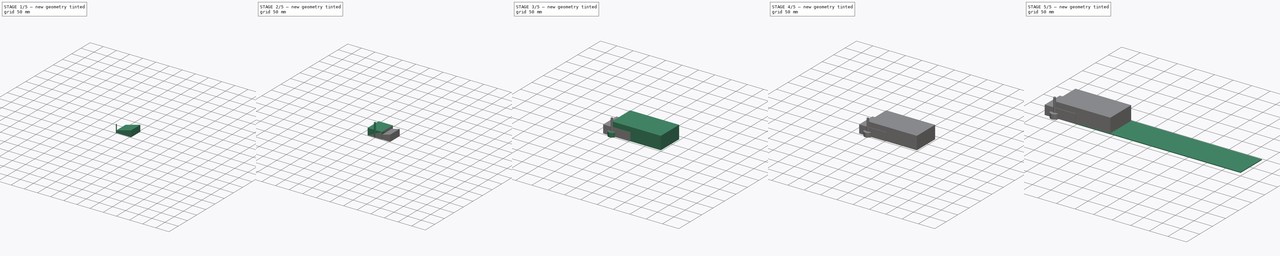
[diagram: build sequence overview — one tinted view per stage of 5, left to right]
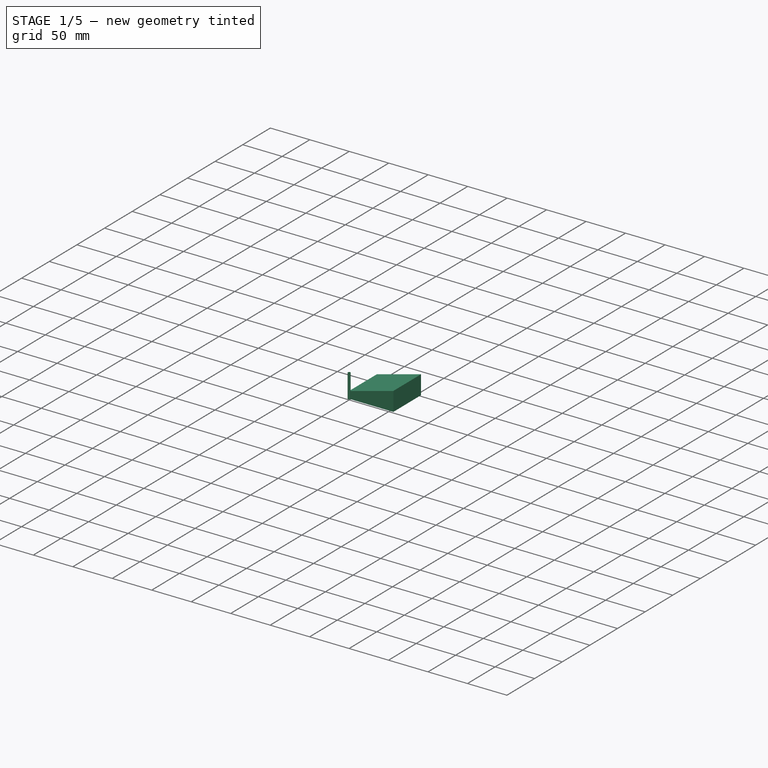
[diagram: stage 1 of 5 — iso view after this stage's code; geometry added in this stage tinted green]
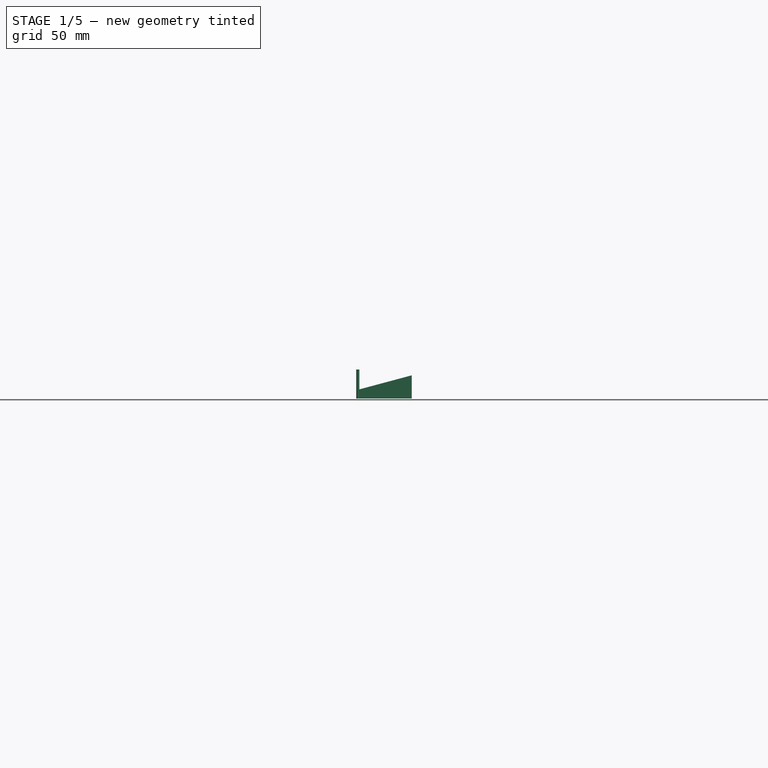
[diagram: stage 1 of 5 — front view after this stage's code; geometry added in this stage tinted green]
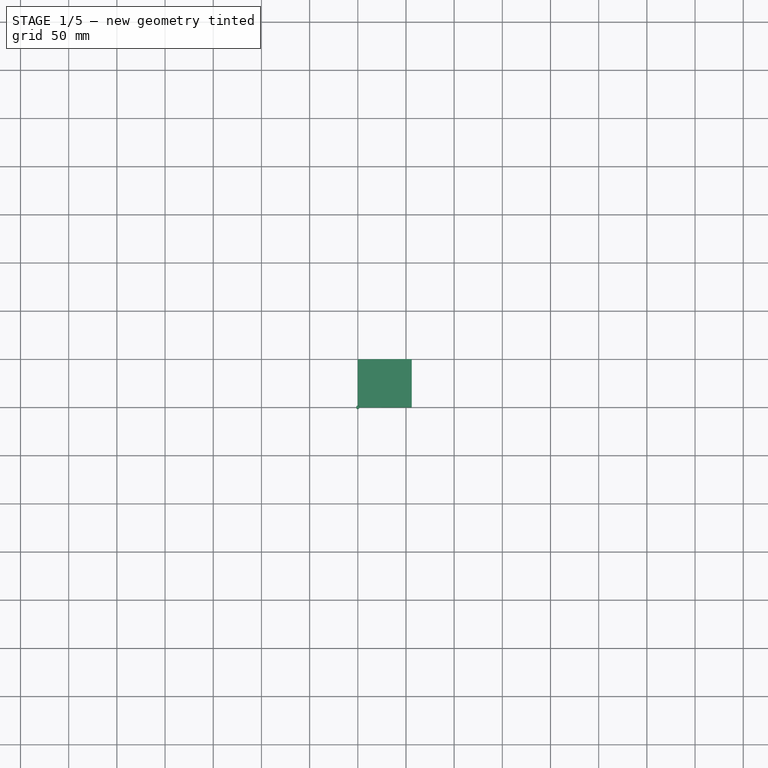
[diagram: stage 1 of 5 — top view after this stage's code; geometry added in this stage tinted green]
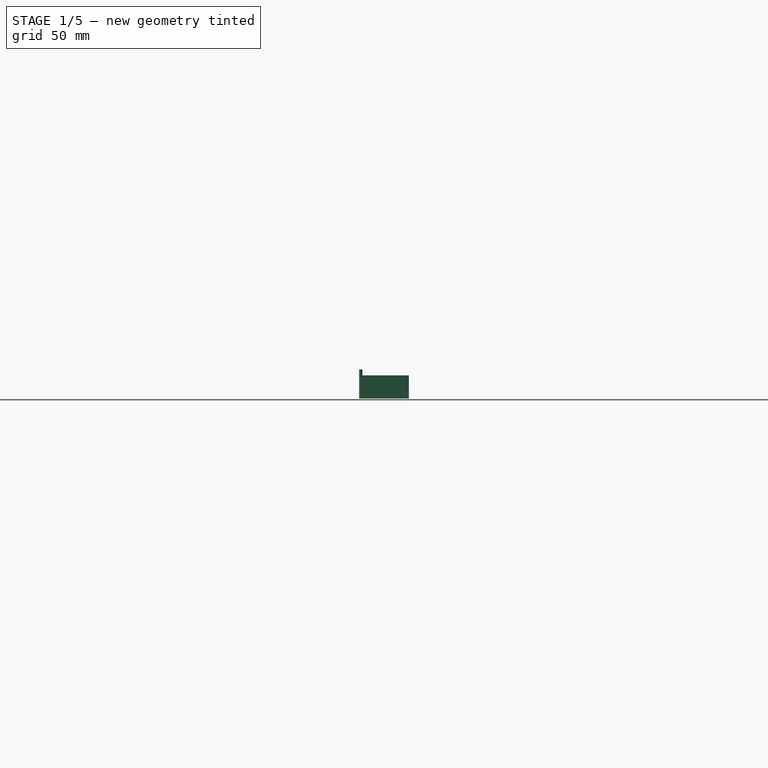
[diagram: stage 1 of 5 — right view after this stage's code; geometry added in this stage tinted green]
FCSTD DOCUMENT  (FreeCAD 0.21R31527 (Git))
Label: bend_conductor
License: All rights reserved
LicenseURL: http://en.wikipedia.org/wiki/All_rights_reserved
objects: Path::FeaturePython×18, Part::FeaturePython×12, App::DocumentObjectGroup×12, App::FeaturePython×4, PartDesign::Body×3, PartDesign::AdditiveBox×2, Sketcher::SketchObject×1, PartDesign::Pad×1
note: 26 computed .brp shape members not serialized (recipe doc carries the construction recipe); baked Part::Feature solids carry a one-line shape summary decoded from their .brp

FEATURE [Path::FeaturePython] MillFace001  # Path/CAM operation (typed FeaturePython)
  Active = true
  AreaParams:
    Tolerance = 1e-07
    FitArcs = True
    Simplify = False
    CleanDistance = 0.0
    Accuracy = 0.01
    Unit = 1.0
    MinArcPoints = 4
    MaxArcPoints = 100
    ClipperScale = 10000000.0
    Fill = 0
    Coplanar = 0
    Reorient = True
    Outline = False
    Explode = False
    OpenMode = 0
    Deflection = 0.01
    SubjectFill = 0
    ClipFill = 0
    Offset = 0.0
    ExtraPass = 0
    Stepover = 0.0
    LastStepover = 0.0
    JoinType = 0
    EndType = 0
    MiterLimit = 2.0
    RoundPrecision = 0.0
    PocketMode = 2
    ToolRadius = 11.0
    PocketExtraOffset = 0.0
    PocketStepover = 11.0
    PocketLastStepover = 0.0
    FromCenter = True
    Angle = 45.0
    AngleShift = 0.0
    Shift = 0.0
    Thicken = False
    SectionCount = -1
    Stepdown = 1.0
    SectionOffset = 0.0
    SectionTolerance = 1e-07
    SectionMode = 2
    Project = False
  BoundaryShape = 3
  ClearEdges = false
  ClearanceHeight = 45
  CoolantMode = 0
  CutMode = 0
  CycleTime = 00:00:48
  ExcludeRaisedAreas = false
  ExtraOffset = 0
  FinalDepth = 24
  FinishDepth = 0
  KeepToolDown = true
  MinTravel = false
  OffsetPattern = 1
  OpFinalDepth = 24
  OpStartDepth = 40
  OpStockZMax = 40
  OpStockZMin = 0
  OpToolDiameter = 22
  PathParams:
    orientation = 1
    feedrate = 51.666666666666664
    feedrate_v = 16.666666666666668
    verbose = True
    resume_height = 43.0
    retraction = 45.0
    return_end = True
    preamble = False
    threshold = 22.011
  PocketLastStepOver = 0
  SafeHeight = 43
  SplitArcs = false
  StartAt = 0
  StartDepth = 40
  StartPoint = (0,0,0)
  StepDown = 10
  StepOver = 50
  ToolController = -> _2mm_Endmill007
  UseStartPoint = false
  ZigZagAngle = 45
  expr: ClearanceHeight = OpStockZMax + SetupSheet001.ClearanceHeightOffset
  expr: FinalDepth = OpFinalDepth
  expr: SafeHeight = OpStockZMax + SetupSheet001.SafeHeightOffset
  expr: StartDepth = OpStartDepth
FEATURE [Path::FeaturePython] RampEntryDressup001  # Path/CAM operation (typed FeaturePython)
  Angle = 60
  Base = -> MillFace001
  CustomFeedRate = 0
  DressupStartDepth = 40
  Method = 2
  RampFeedRate = 0
  UseStartDepth = false
FEATURE [Path::FeaturePython] DressupDogbone  # Path/CAM operation (typed FeaturePython)
  Base = -> RampEntryDressup001
  Custom = 0
  Incision = 0
  Side = 1
  Style = 2
FEATURE [App::DocumentObjectGroup] Operations001
  Group = -> [DressupDogbone]
FEATURE [Path::FeaturePython] Job001  # Path/CAM operation (typed FeaturePython)
  CycleTime = 00:00:48
  Fixtures = G54
  GeometryTolerance = 0.01
  JobType = 0
  LastPostProcessDate = 2023-01-15 18:26:54.475540
  LastPostProcessOutput = <userpath>/2411-26D9/Unnamed3.Job001.tap
  Model = -> Model001
  Operations = -> Operations001
  OrderOutputBy = 0
  PostProcessor = 1
  PostProcessorOutputFile = %d.%j.tap
  SetupSheet = -> SetupSheet001
  SplitOutput = false
  Stock = -> Stock002
  Tools = -> Tools001
FEATURE [Sketcher::SketchObject] Sketch
  FullyConstrained = true
  MapMode = 5
  Placement = pos=(0,0,0) rot=(0.57735,0.57735,0.57735;2.0944rad)
  Support = -> [YZ_Plane002]
  sketch-geometry (4):
    g0: LineSegment StartX=0 StartY=0 StartZ=0 EndX=55.9808 EndY=0 EndZ=0
    g1: LineSegment StartX=55.9808 StartY=0 StartZ=0 EndX=55.9808 EndY=24 EndZ=0
    g2: LineSegment StartX=55.9808 StartY=24 StartZ=0 EndX=0 EndY=9 EndZ=0
    g3: LineSegment StartX=0 StartY=9 StartZ=0 EndX=0 EndY=0 EndZ=0
  constraints (11):
    c: Coincident(g0,g1)
    c: Coincident(g1,g2)
    c: Coincident(g2,g3)
    c: Coincident(g3,g0)
    c: Horizontal(g0)
    c: Vertical(g1)
    c: Vertical(g3)
    c: Coincident(g0,g-1)
    c: DistanceY(g2) = 9
    c: DistanceY(g1) = 24
    c: Angle(g-1,g2) = 0.261799
FEATURE [PartDesign::Pad] Pad
  Direction = (1,-2e-16,3e-16)
  Length = 50
  Length2 = 10
  Midplane = true
  Placement = pos=(0,0,0) rot=(0.57735,0.57735,0.57735;2.0944rad)
  Profile = -> Sketch
  ReferenceAxis = -> Sketch [N_Axis]
  Type = 0
FEATURE [PartDesign::Body] Body002
  Group = -> [Sketch,Pad]
  Origin = -> Origin002
  Tip = -> Pad
FEATURE [App::FeaturePython] SetupSheet002  # Path/CAM operation (typed FeaturePython)
  ClearanceHeightExpression = OpStockZMax+SetupSheet002.ClearanceHeightOffset
  ClearanceHeightOffset = 5
  CoolantMode = 0
  CoolantModes = None | Flood | Mist
  FinalDepthExpression = OpFinalDepth
  HorizRapid = 0
  ProfileDirection = 1
  ProfileprocessCircles = true
  ProfileprocessHoles = true
  ProfileprocessPerimeter = true
  SafeHeightExpression = OpStockZMax+SetupSheet002.SafeHeightOffset
  SafeHeightOffset = 3
  StartDepthExpression = OpStartDepth
  StepDownExpression = OpToolDiameter
  VertRapid = 0
FEATURE [Part::FeaturePython] Clone002  label="Model-Body002"  # Draft clone (typed FeaturePython)
  AttacherType = Attacher::AttachEngine3D
  Fuse = false
  Objects = -> [Body002]
  PathResource = Model
  Placement = pos=(7e-15,25,-1e-14) rot=(0,0,-1;1.5708rad)
  Scale = (1,1,1)
FEATURE [App::DocumentObjectGroup] Model002
  Group = -> [Clone002]
FEATURE [Part::FeaturePython] ToolBit  label="3.175mm Endmill"  # Path/CAM toolbit (typed FeaturePython)
  BitPropertyNames = Chipload | CuttingEdgeHeight | Diameter | Flutes | Length | Material | ShankDiameter | SpindleDirection
  BitShape = <path>
  Chipload = 0
  CuttingEdgeHeight = 30
  Diameter = 3.17
  Flutes = 0
  Length = 10
  Material = 0
  ShankDiameter = 3
  ShapeName = endmill
  SpindleDirection = 0
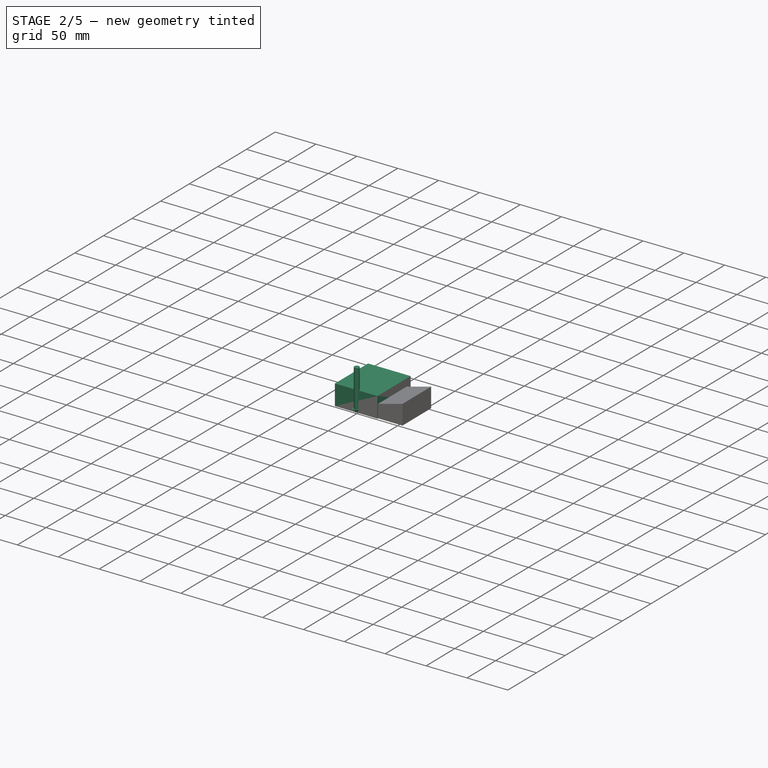
[diagram: stage 2 of 5 — iso view after this stage's code; geometry added in this stage tinted green]
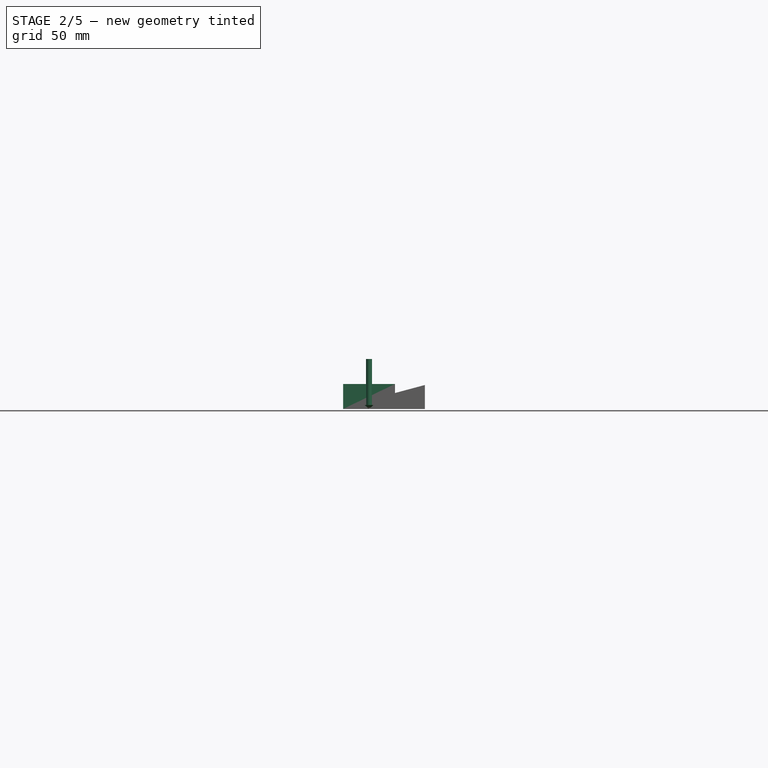
[diagram: stage 2 of 5 — front view after this stage's code; geometry added in this stage tinted green]
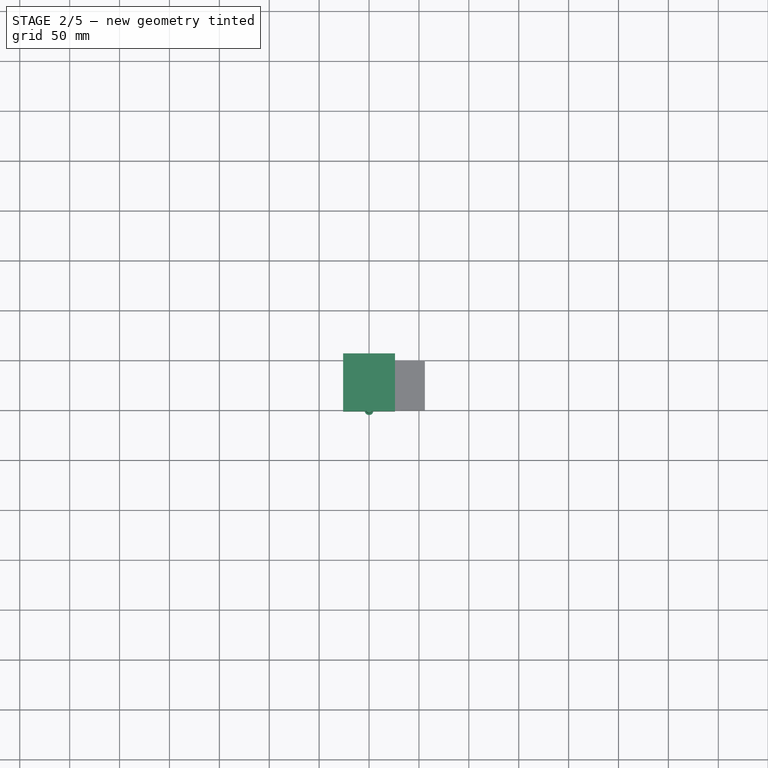
[diagram: stage 2 of 5 — top view after this stage's code; geometry added in this stage tinted green]
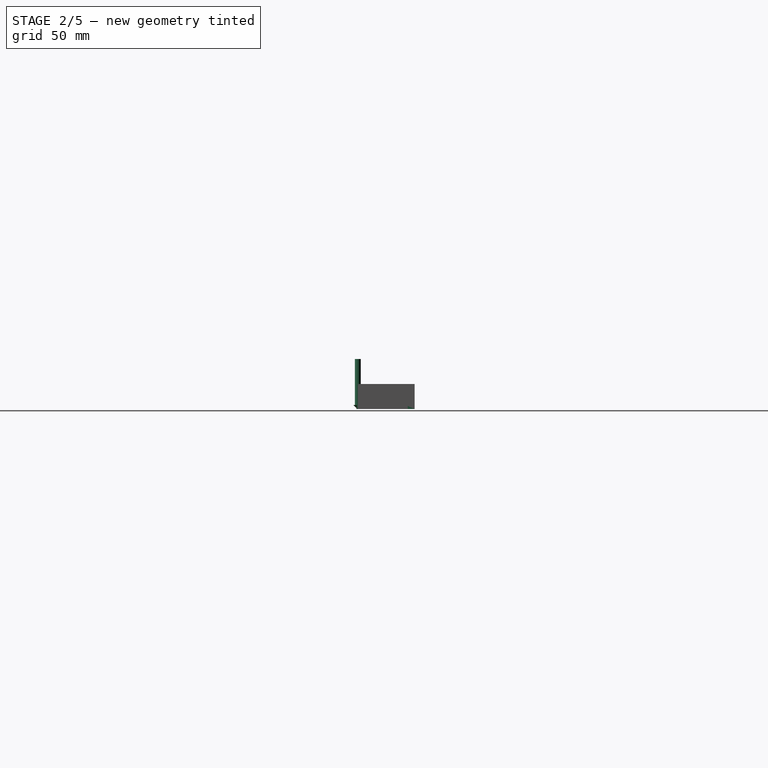
[diagram: stage 2 of 5 — right view after this stage's code; geometry added in this stage tinted green]
FEATURE [Path::FeaturePython] Pocket3D  # Path/CAM operation (typed FeaturePython)
  Active = true
  AdaptivePocketFinish = true
  AdaptivePocketStart = true
  AreaParams:
    Tolerance = 1e-07
    FitArcs = True
    Simplify = False
    CleanDistance = 0.0
    Accuracy = 0.01
    Unit = 1.0
    MinArcPoints = 4
    MaxArcPoints = 100
    ClipperScale = 10000000.0
    Fill = 0
    Coplanar = 0
    Reorient = True
    Outline = False
    Explode = False
    OpenMode = 0
    Deflection = 0.01
    SubjectFill = 0
    ClipFill = 0
    Offset = 0.0
    ExtraPass = 0
    Stepover = 0.0
    LastStepover = 0.0
    JoinType = 0
    EndType = 0
    MiterLimit = 2.0
    RoundPrecision = 0.0
    PocketMode = 2
    ToolRadius = 1.585
    PocketExtraOffset = 0.0
    PocketStepover = 1.585
    PocketLastStepover = 0.0
    FromCenter = True
    Angle = 45.0
    AngleShift = 0.0
    Shift = 0.0
    Thicken = False
    SectionCount = -1
    Stepdown = 1.0
    SectionOffset = 0.0
    SectionTolerance = 1e-07
    SectionMode = 2
    Project = False
  ClearanceHeight = 30
  CoolantMode = 0
  CutMode = 0
  CycleTime = 00:01:18
  ExtraOffset = 0
  FinalDepth = -6.04e-14
  FinishDepth = 0
  HandleMultipleFeatures = 0
  KeepToolDown = true
  MinTravel = false
  OffsetPattern = 1
  OpFinalDepth = -6.04e-14
  OpStartDepth = 25
  OpStockZMax = 25
  OpStockZMin = 0
  OpToolDiameter = 3.17
  PathParams:
    orientation = 1
    feedrate = 51.666666666666664
    feedrate_v = 16.666666666666668
    verbose = True
    resume_height = 28.000000000000036
    retraction = 30.000000000000036
    return_end = True
    preamble = False
    threshold = 3.171585
  PocketLastStepOver = 0
  ProcessStockArea = false
  SafeHeight = 28
  SplitArcs = false
  StartAt = 0
  StartDepth = 25
  StartPoint = (0,0,0)
  StepDown = 3.17
  StepOver = 50
  ToolController = -> __175mm_Endmill
  UseStartPoint = false
  ZigZagAngle = 45
  expr: ClearanceHeight = OpStockZMax + SetupSheet002.ClearanceHeightOffset
  expr: FinalDepth = OpFinalDepth
  expr: OpFinalDepth = -6.039613253960852e-14mm
  expr: SafeHeight = OpStockZMax + SetupSheet002.SafeHeightOffset
  expr: StartDepth = OpStartDepth
  expr: StepDown = OpToolDiameter
FEATURE [Path::FeaturePython] Profile  # Path/CAM operation (typed FeaturePython)
  Active = true
  AreaParams:
    Tolerance = 1e-07
    FitArcs = True
    Simplify = False
    CleanDistance = 0.0
    Accuracy = 0.01
    Unit = 1.0
    MinArcPoints = 4
    MaxArcPoints = 100
    ClipperScale = 10000000.0
    Fill = 0
    Coplanar = 0
    Reorient = True
    Outline = False
    Explode = False
    OpenMode = 0
    Deflection = 0.01
    SubjectFill = 0
    ClipFill = 0
    Offset = 1.585
    ExtraPass = 0
    Stepover = 0.0
    LastStepover = 0.0
    JoinType = 0
    EndType = 0
    MiterLimit = 2.0
    RoundPrecision = 0.0
    PocketMode = 0
    ToolRadius = 1.0
    PocketExtraOffset = 0.0
    PocketStepover = 0.0
    PocketLastStepover = 0.0
    FromCenter = False
    Angle = 45.0
    AngleShift = 0.0
    Shift = 0.0
    Thicken = False
    SectionCount = -1
    Stepdown = 1.0
    SectionOffset = 0.0
    SectionTolerance = 1e-07
    SectionMode = 2
    Project = False
  ClearanceHeight = 30
  CoolantMode = 0
  CycleTime = 00:00:40
  Direction = 1
  FinalDepth = -6.3e-14
  HandleMultipleFeatures = 0
  JoinType = 0
  MiterLimit = 0.1
  OffsetExtra = 0
  OpFinalDepth = -6.3e-14
  OpStartDepth = 25
  OpStockZMax = 25
  OpStockZMin = -6.3e-14
  OpToolDiameter = 3.17
  PathParams:
    orientation = 0
    feedrate = 51.666666666666664
    feedrate_v = 16.666666666666668
    verbose = True
    resume_height = 27.99999999999997
    retraction = 29.99999999999997
    return_end = True
    preamble = False
  SafeHeight = 28
  Side = 0
  SplitArcs = false
  StartDepth = 25
  StartPoint = (0,0,0)
  StepDown = 3.17
  ToolController = -> __175mm_Endmill
  UseComp = true
  UseStartPoint = false
  processCircles = true
  processHoles = true
  processPerimeter = true
  expr: ClearanceHeight = OpStockZMax + SetupSheet002.ClearanceHeightOffset
  expr: FinalDepth = OpFinalDepth
  expr: SafeHeight = OpStockZMax + SetupSheet002.SafeHeightOffset
  expr: StartDepth = OpStartDepth
  expr: StepDown = OpToolDiameter
FEATURE [Path::FeaturePython] DressupDogbone001  # Path/CAM operation (typed FeaturePython)
  Base = -> Pocket3D
  Custom = 0
  Incision = 0
  Side = 1
  Style = 2
FEATURE [App::FeaturePython] SetupSheet003  # Path/CAM operation (typed FeaturePython)
  ClearanceHeightExpression = OpStockZMax+SetupSheet003.ClearanceHeightOffset
  ClearanceHeightOffset = 5
  CoolantMode = 0
  CoolantModes = None | Flood | Mist
  FinalDepthExpression = OpFinalDepth
  HorizRapid = 0
  ProfileDirection = 1
  ProfileprocessCircles = true
  ProfileprocessHoles = true
  ProfileprocessPerimeter = true
  SafeHeightExpression = OpStockZMax+SetupSheet003.SafeHeightOffset
  SafeHeightOffset = 3
  StartDepthExpression = OpStartDepth
  StepDownExpression = OpToolDiameter
  VertRapid = 0
FEATURE [Part::FeaturePython] Clone003  label="Model-Body003"  # Draft clone (typed FeaturePython)
  AttacherType = Attacher::AttachEngine3D
  Fuse = false
  Objects = -> [Body002]
  PathResource = Model
  Scale = (1,1,1)
FEATURE [App::DocumentObjectGroup] Model003
  Group = -> [Clone003]
FEATURE [Part::FeaturePython] Stock004  # WARN: FeaturePython — macro-defined, semantics opaque (R4)
  Base = -> Model003
  ExtXneg = 1
  ExtXpos = 1
  ExtYneg = 1
  ExtYpos = 1
  ExtZneg = 0
  ExtZpos = 1
  Placement = pos=(-25,-1.1e-14,-5.3e-14) rot=(0,0,1;0rad)
  StockType = FromBase
FEATURE [Part::FeaturePython] ToolBit004  label="NZV6109015"  # Path/CAM toolbit (typed FeaturePython)
  BitPropertyNames = Chipload | CuttingEdgeAngle | CuttingEdgeHeight | Diameter | Flutes | Length | Material | ShankDiameter | TipDiameter
  BitShape = <path>
  Chipload = 0
  CuttingEdgeAngle = 90
  CuttingEdgeHeight = 4
  Diameter = 10
  File = <userpath>/.local/share/FreeCAD/Macro/Bit/NZV6109010.fctb
  Flutes = 0
  Length = 50
  Material = 0
  ShankDiameter = 6
  ShapeName = chamfer
  TipDiameter = 1
FEATURE [Path::FeaturePython] NZV6109015  label="NZV6109016"  # Path/CAM operation (typed FeaturePython)
  HorizFeed = 51.6667
  HorizRapid = 0
  SpindleDir = 0
  SpindleSpeed = 18000
  Tool = -> ToolBit004
  ToolNumber = 2
  VertFeed = 16.6667
  VertRapid = 0
  expr: HorizRapid = SetupSheet003.HorizRapid
  expr: VertRapid = SetupSheet003.VertRapid
FEATURE [App::DocumentObjectGroup] Tools003
  Group = -> [NZV6109015]
FEATURE [Path::FeaturePython] Surface  # Path/CAM operation (typed FeaturePython)
  Active = true
  AngularDeflection = 0.25
  AvoidLastX_Faces = 0
  AvoidLastX_InternalFeatures = true
  Base = -> [Clone003]
  BoundBox = 0
  BoundaryAdjustment = 0
  BoundaryEnforcement = true
  CircularUseG2G3 = false
  ClearanceHeight = 30
  CoolantMode = 0
  CutMode = 0
  CutPattern = 2
  CutPatternAngle = 0
  CutPatternReversed = false
  CutterTilt = 0
  CycleTime = 00:00:01
  DepthOffset = 0
  DropCutterDir = 0
  DropCutterExtraOffset = (0,0,0)
  FinalDepth = 9
  GapSizes = No gaps identified.
  GapThreshold = 0.005
  HandleMultipleFeatures = 0
  InternalFeaturesAdjustment = 0
  InternalFeaturesCut = true
  LayerMode = 0
  LinearDeflection = 0.0025
  OpFinalDepth = 9
  OpStartDepth = 25
  OpStockZMax = 25
  OpStockZMin = -5.3e-14
  OpToolDiameter = 10
  OptimizeLinearPaths = true
  OptimizeStepOverTransitions = false
  PatternCenterAt = 0
  PatternCenterCustom = (0,0,0)
  ProfileEdges = 0
  RotationAxis = 0
  SafeHeight = 28
  SampleInterval = 1
  ScanType = 0
  ShowTempObjects = false
  StartDepth = 25
  StartIndex = 0
  StartPoint = (0,0,0)
  StepDown = 10
  StepOver = 100
  StopIndex = 360
  ToolController = -> NZV6109015
  UseStartPoint = false
  expr: ClearanceHeight = OpStockZMax + SetupSheet003.ClearanceHeightOffset
  expr: FinalDepth = OpFinalDepth
  expr: SafeHeight = OpStockZMax + SetupSheet003.SafeHeightOffset
  expr: StartDepth = OpStartDepth
  expr: StepDown = OpToolDiameter
FEATURE [App::DocumentObjectGroup] Operations003
  Group = -> [Surface]
FEATURE [Path::FeaturePython] Job003  # Path/CAM operation (typed FeaturePython)
  CycleTime = 00:00:01
  Fixtures = G54
  GeometryTolerance = 0.01
  JobType = 0
  Model = -> Model003
  Operations = -> Operations003
  OrderOutputBy = 0
  PostProcessor = 1
  PostProcessorOutputFile = %d.%j.tap
  SetupSheet = -> SetupSheet003
  SplitOutput = false
  Stock = -> Stock004
  Tools = -> Tools003
FEATURE [Path::FeaturePython] Surface001  # Path/CAM operation (typed FeaturePython)
  Active = true
  AngularDeflection = 0.25
  AvoidLastX_Faces = 0
  AvoidLastX_InternalFeatures = true
  Base = -> [Clone002]
  BoundBox = 0
  BoundaryAdjustment = 0
  BoundaryEnforcement = true
  CircularUseG2G3 = false
  ClearanceHeight = 30
  CoolantMode = 0
  CutMode = 0
  CutPattern = 2
  CutPatternAngle = 0
  CutPatternReversed = false
  CutterTilt = 0
  CycleTime = 00:01:25
  DepthOffset = 0
  DropCutterDir = 0
  DropCutterExtraOffset = (0,0,0)
  FinalDepth = 9
  GapSizes = No gaps identified.
  GapThreshold = 0.005
  HandleMultipleFeatures = 0
  InternalFeaturesAdjustment = 0
  InternalFeaturesCut = true
  LayerMode = 0
  LinearDeflection = 0.0025
  OpFinalDepth = 9
  OpStartDepth = 25
  OpStockZMax = 25
  OpStockZMin = 0
  OpToolDiameter = 3.17
  OptimizeLinearPaths = true
  OptimizeStepOverTransitions = false
  PatternCenterAt = 0
  PatternCenterCustom = (0,0,0)
  ProfileEdges = 0
  RotationAxis = 0
  SafeHeight = 28
  SampleInterval = 1
  ScanType = 0
  ShowTempObjects = false
  StartDepth = 25
  StartIndex = 0
  StartPoint = (0,0,0)
  StepDown = 3.17
  StepOver = 100
  StopIndex = 360
  ToolController = -> __175mm_Endmill
  UseStartPoint = false
  expr: ClearanceHeight = OpStockZMax + SetupSheet002.ClearanceHeightOffset
  expr: FinalDepth = OpFinalDepth
  expr: SafeHeight = OpStockZMax + SetupSheet002.SafeHeightOffset
  expr: StartDepth = OpStartDepth
  expr: StepDown = OpToolDiameter
FEATURE [App::DocumentObjectGroup] Operations002
  Group = -> [DressupDogbone001,Profile,Surface001]
FEATURE [Path::FeaturePython] Job002  # Path/CAM operation (typed FeaturePython)
  CycleTime = 00:03:23
  Fixtures = G54
  GeometryTolerance = 0.01
  JobType = 0
  LastPostProcessDate = 2023-01-15 19:02:20.319499
  LastPostProcessOutput = <userpath>/2411-26D9/bend_conductor.Job002.tap
  Model = -> Model002
  Operations = -> Operations002
  OrderOutputBy = 0
  PostProcessor = 1
  PostProcessorOutputFile = %d.%j.tap
  SetupSheet = -> SetupSheet002
  SplitOutput = false
  Stock = -> Stock003
  Tools = -> Tools002
note: 4 file-system paths scrubbed to <path> (originals preserved in the JSON sidecar)
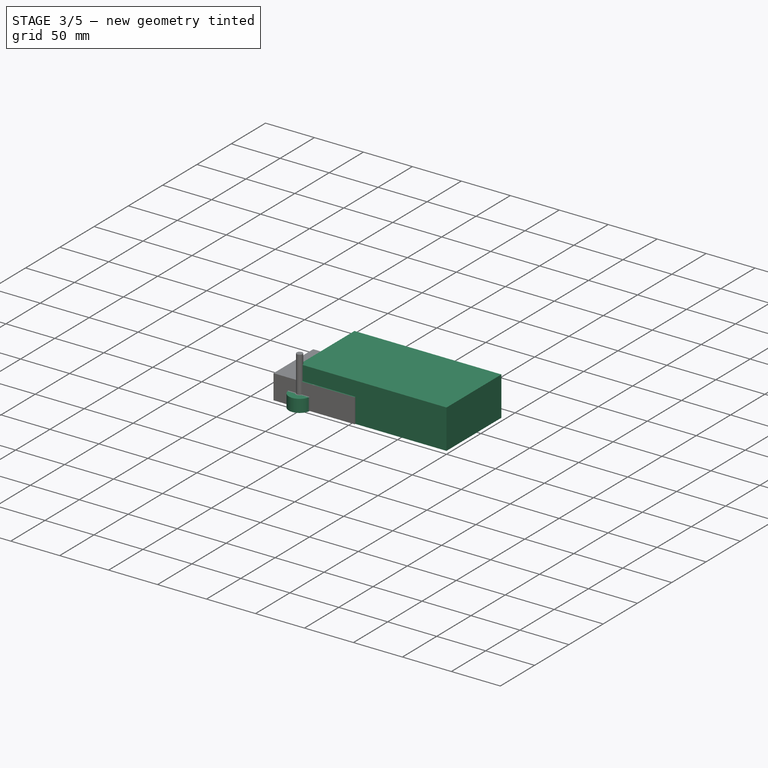
[diagram: stage 3 of 5 — iso view after this stage's code; geometry added in this stage tinted green]
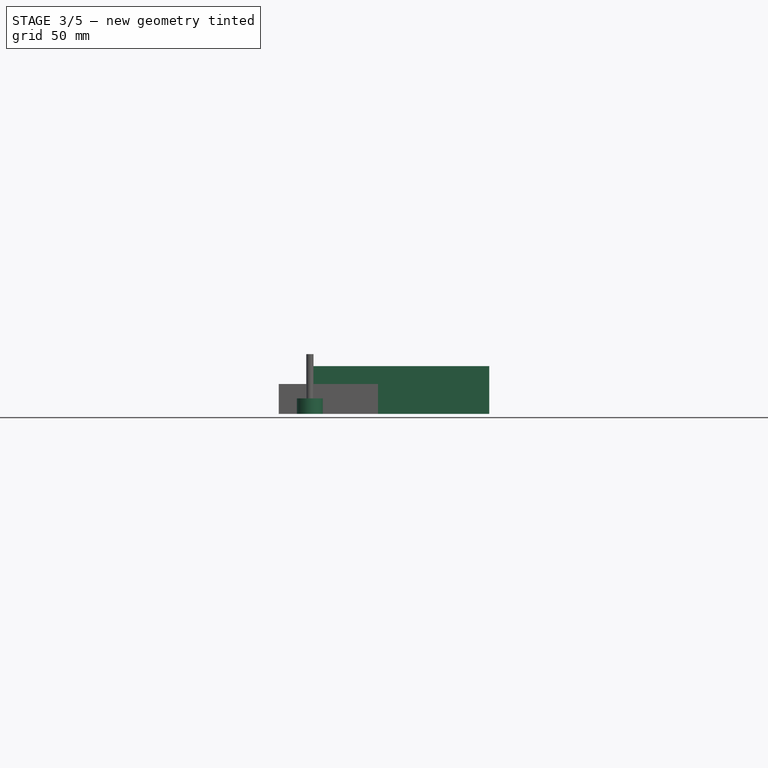
[diagram: stage 3 of 5 — front view after this stage's code; geometry added in this stage tinted green]
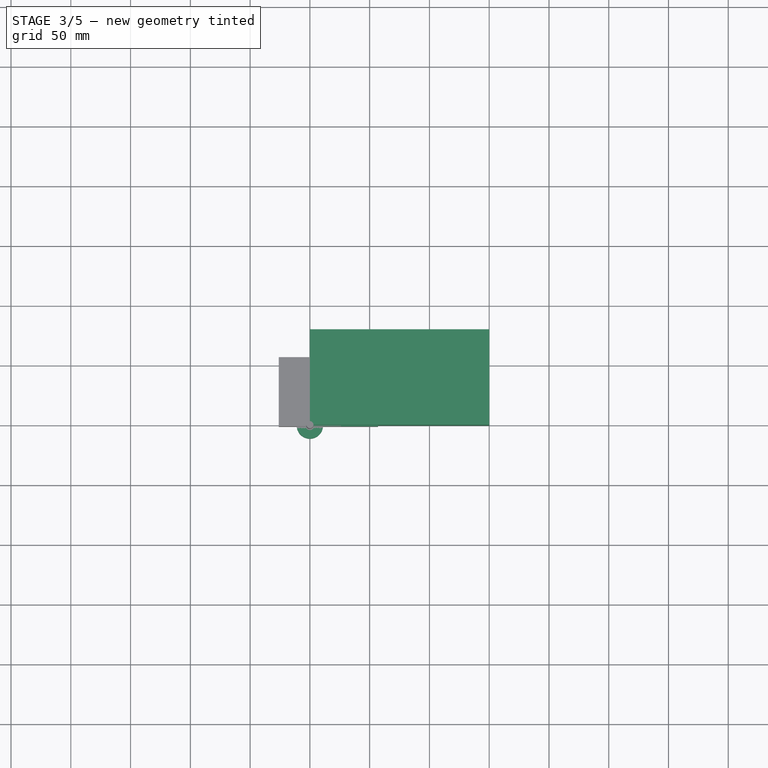
[diagram: stage 3 of 5 — top view after this stage's code; geometry added in this stage tinted green]
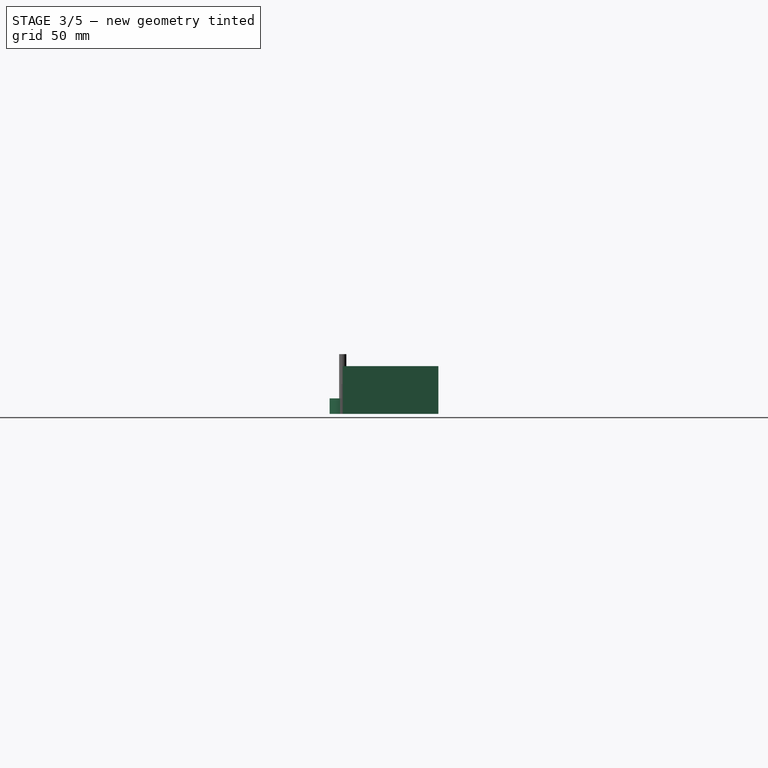
[diagram: stage 3 of 5 — right view after this stage's code; geometry added in this stage tinted green]
FEATURE [App::DocumentObjectGroup] Model001
  Group = -> [Clone001]
FEATURE [Part::FeaturePython] ToolBit002  label="22mm Endmill007"  # Path/CAM toolbit (typed FeaturePython)
  BitPropertyNames = Chipload | CuttingEdgeHeight | Diameter | Flutes | Length | Material | ShankDiameter | SpindleDirection
  BitShape = <path>
  Chipload = 0
  CuttingEdgeHeight = 13
  Diameter = 22
  File = <userpath>/.local/share/FreeCAD/Macro/Bit/22mm_Endmill.fctb
  Flutes = 0
  Length = 44
  Material = 0
  ShankDiameter = 4
  ShapeName = endmill
  SpindleDirection = 0
FEATURE [Path::FeaturePython] _2mm_Endmill007  label="22mm Endmill008"  # Path/CAM operation (typed FeaturePython)
  HorizFeed = 51.6667
  HorizRapid = 0
  SpindleDir = 0
  SpindleSpeed = 12000
  Tool = -> ToolBit002
  ToolNumber = 2
  VertFeed = 16.6667
  VertRapid = 0
  expr: HorizRapid = SetupSheet001.HorizRapid
  expr: VertRapid = SetupSheet001.VertRapid
FEATURE [App::DocumentObjectGroup] Tools001
  Group = -> [_2mm_Endmill007]
FEATURE [Part::FeaturePython] Stock002  # WARN: FeaturePython — macro-defined, semantics opaque (R4)
  Height = 40
  Length = 150
  StockType = CreateBox
  Width = 80
FEATURE [Path::FeaturePython] __175mm_Endmill  label="3.175mm Endmill001"  # Path/CAM operation (typed FeaturePython)
  HorizFeed = 51.6667
  HorizRapid = 0
  SpindleDir = 0
  SpindleSpeed = 18000
  Tool = -> ToolBit
  ToolNumber = 1
  VertFeed = 16.6667
  VertRapid = 0
  expr: HorizRapid = SetupSheet002.HorizRapid
  expr: VertRapid = SetupSheet002.VertRapid
FEATURE [App::DocumentObjectGroup] Tools002
  Group = -> [__175mm_Endmill]
FEATURE [Part::FeaturePython] Stock003  # WARN: FeaturePython — macro-defined, semantics opaque (R4)
  Base = -> Model002
  ExtXneg = 1
  ExtXpos = 1
  ExtYneg = 1
  ExtYpos = 1
  ExtZneg = 0
  ExtZpos = 1
  StockType = FromBase
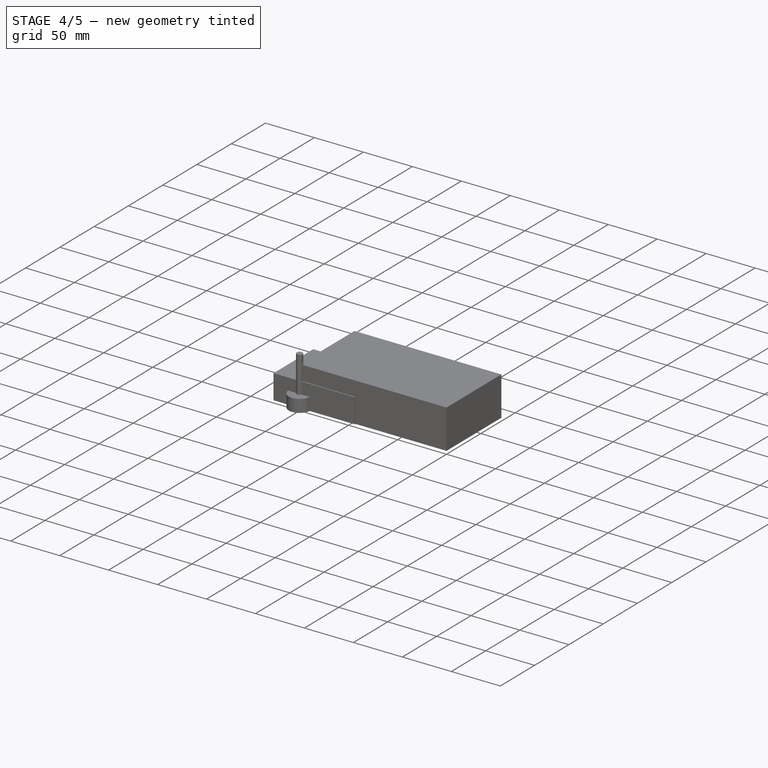
[diagram: stage 4 of 5 — iso view after this stage's code; geometry added in this stage tinted green]
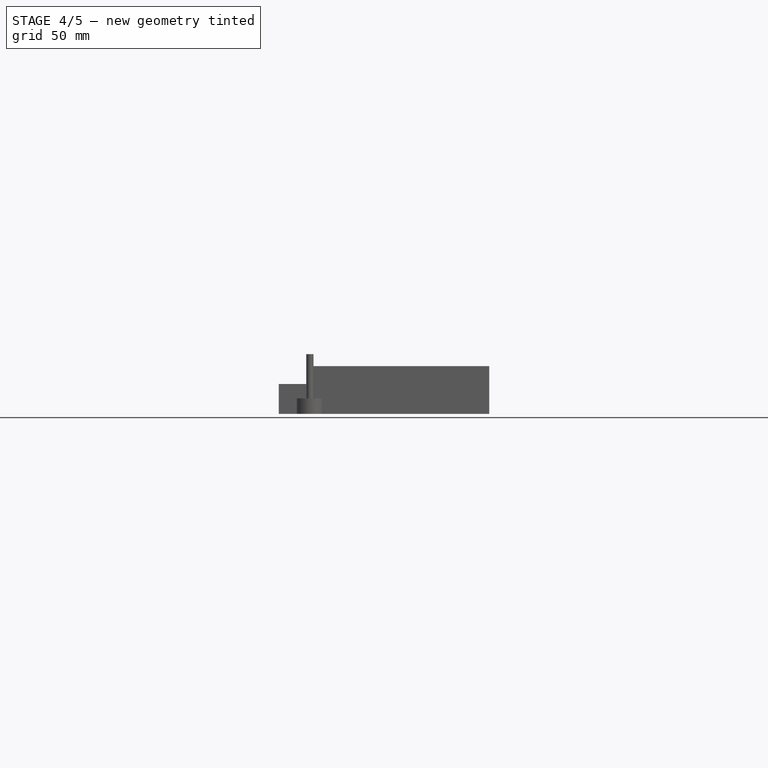
[diagram: stage 4 of 5 — front view after this stage's code; geometry added in this stage tinted green]
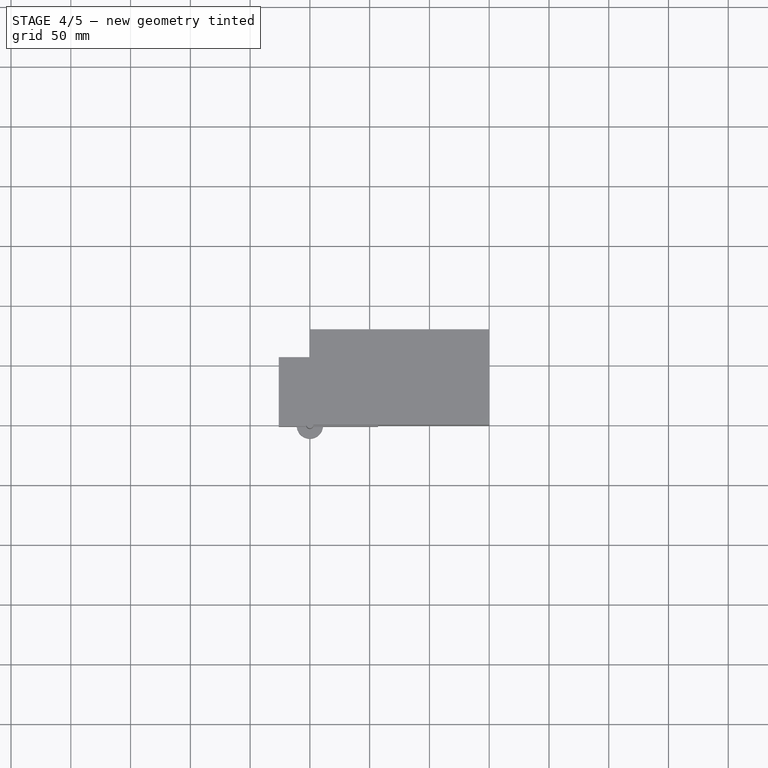
[diagram: stage 4 of 5 — top view after this stage's code; geometry added in this stage tinted green]
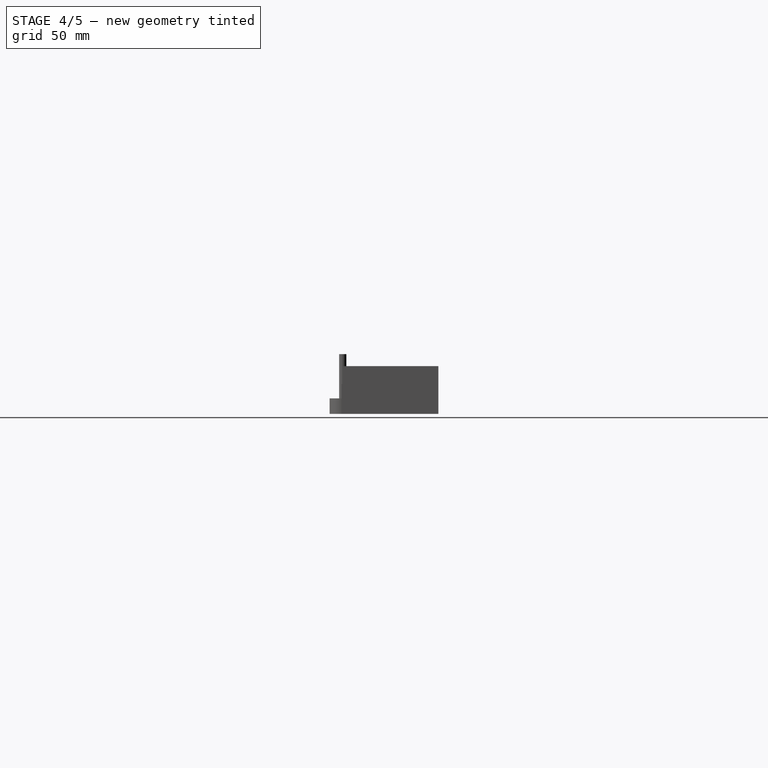
[diagram: stage 4 of 5 — right view after this stage's code; geometry added in this stage tinted green]
FEATURE [Part::FeaturePython] ToolBit001  label="22mm Endmill005"  # Path/CAM toolbit (typed FeaturePython)
  BitPropertyNames = Chipload | CuttingEdgeHeight | Diameter | Flutes | Length | Material | ShankDiameter | SpindleDirection
  BitShape = <path>
  Chipload = 0
  CuttingEdgeHeight = 13
  Diameter = 22
  File = <userpath>/.local/share/FreeCAD/Macro/Bit/22mm_Endmill.fctb
  Flutes = 0
  Length = 44
  Material = 0
  ShankDiameter = 4
  ShapeName = endmill
  SpindleDirection = 0
FEATURE [Path::FeaturePython] _2mm_Endmill005  label="22mm Endmill006"  # Path/CAM operation (typed FeaturePython)
  HorizFeed = 51.6667
  HorizRapid = 1.66667
  SpindleDir = 0
  SpindleSpeed = 12000
  Tool = -> ToolBit001
  ToolNumber = 4
  VertFeed = 16.6667
  VertRapid = 1.67
  expr: HorizRapid = SetupSheet.HorizRapid
  expr: VertRapid = SetupSheet.VertRapid
FEATURE [App::DocumentObjectGroup] Tools
  Group = -> [_2mm_Endmill005]
FEATURE [Path::FeaturePython] MillFace  # Path/CAM operation (typed FeaturePython)
  Active = true
  AreaParams:
    Tolerance = 1e-07
    FitArcs = True
    Simplify = False
    CleanDistance = 0.0
    Accuracy = 0.01
    Unit = 1.0
    MinArcPoints = 4
    MaxArcPoints = 100
    ClipperScale = 10000000.0
    Fill = 0
    Coplanar = 0
    Reorient = True
    Outline = False
    Explode = False
    OpenMode = 0
    Deflection = 0.01
    SubjectFill = 0
    ClipFill = 0
    Offset = 0.0
    ExtraPass = 0
    Stepover = 0.0
    LastStepover = 0.0
    JoinType = 0
    EndType = 0
    MiterLimit = 2.0
    RoundPrecision = 0.0
    PocketMode = 2
    ToolRadius = 11.0
    PocketExtraOffset = 0.0
    PocketStepover = 11.0
    PocketLastStepover = 0.0
    FromCenter = True
    Angle = 45.0
    AngleShift = 0.0
    Shift = 0.0
    Thicken = False
    SectionCount = -1
    Stepdown = 1.0
    SectionOffset = 0.0
    SectionTolerance = 1e-07
    SectionMode = 2
    Project = False
  Base = -> [Clone]
  BoundaryShape = 1
  ClearEdges = true
  ClearanceHeight = 7
  CoolantMode = 0
  CutMode = 1
  CycleTime = 00:01:46
  ExcludeRaisedAreas = false
  ExtraOffset = 0
  FinalDepth = 1
  FinishDepth = 0
  KeepToolDown = true
  MinTravel = true
  OffsetPattern = 1
  OpFinalDepth = 1
  OpStartDepth = 2
  OpStockZMax = 2
  OpStockZMin = 0
  OpToolDiameter = 22
  PathParams = {'orientation': 0, 'sort_mode': 3, 'threshold': 22.011, 'feedrate': 51.666666666666664, 'feedrate_v': 16.666666666666668, 'verbose': True, 'resume_height': 5.0, 'retraction': 7.0, 'return_end': True, 'preamble': False, 'start': Vector (0.0, 0.0, 0.0)}
  PocketLastStepOver = 0
  SafeHeight = 5
  SplitArcs = false
  StartAt = 0
  StartDepth = 2
  StartPoint = (0,0,0)
  StepDown = 22
  StepOver = 50
  ToolController = -> _2mm_Endmill005
  UseStartPoint = true
  ZigZagAngle = 45
  expr: ClearanceHeight = OpStockZMax + SetupSheet.ClearanceHeightOffset
  expr: FinalDepth = OpFinalDepth
  expr: SafeHeight = OpStockZMax + SetupSheet.SafeHeightOffset
  expr: StartDepth = OpStartDepth
  expr: StepDown = OpToolDiameter
FEATURE [Path::FeaturePython] RampEntryDressup  # Path/CAM operation (typed FeaturePython)
  Angle = 80
  Base = -> MillFace
  CustomFeedRate = 0
  DressupStartDepth = 2
  Method = 2
  RampFeedRate = 0
  UseStartDepth = false
FEATURE [App::DocumentObjectGroup] Operations
  Group = -> [RampEntryDressup]
FEATURE [Path::FeaturePython] Job  # Path/CAM operation (typed FeaturePython)
  CycleTime = 00:01:46
  Fixtures = G54
  GeometryTolerance = 0.01
  JobType = 0
  LastPostProcessDate = 2023-01-15 17:37:30.431551
  LastPostProcessOutput = <userpath>/2411-26D9/Unnamed3.Job.tap
  Model = -> Model
  Operations = -> Operations
  OrderOutputBy = 0
  PostProcessor = 1
  PostProcessorOutputFile = %d.%j.tap
  SetupSheet = -> SetupSheet
  SplitOutput = false
  Stock = -> Stock
  Tools = -> Tools
FEATURE [PartDesign::AdditiveBox] Box001
  AttacherType = Attacher::AttachEngine3D
  Height = 24
  Length = 150
  Width = 80
FEATURE [PartDesign::Body] Body001
  Group = -> [Box001]
  Origin = -> Origin001
  Tip = -> Box001
FEATURE [App::FeaturePython] SetupSheet001  # Path/CAM operation (typed FeaturePython)
  ClearanceHeightExpression = OpStockZMax+SetupSheet001.ClearanceHeightOffset
  ClearanceHeightOffset = 5
  CoolantMode = 0
  CoolantModes = None | Flood | Mist
  FinalDepthExpression = OpFinalDepth
  HorizRapid = 0
  ProfileDirection = 1
  ProfileprocessCircles = true
  ProfileprocessHoles = true
  ProfileprocessPerimeter = true
  SafeHeightExpression = OpStockZMax+SetupSheet001.SafeHeightOffset
  SafeHeightOffset = 3
  StartDepthExpression = OpStartDepth
  StepDownExpression = OpToolDiameter
  VertRapid = 0
FEATURE [Part::FeaturePython] Clone001  label="Model-Body001"  # Draft clone (typed FeaturePython)
  AttacherType = Attacher::AttachEngine3D
  Fuse = false
  Objects = -> [Body001]
  PathResource = Model
  Scale = (1,1,1)
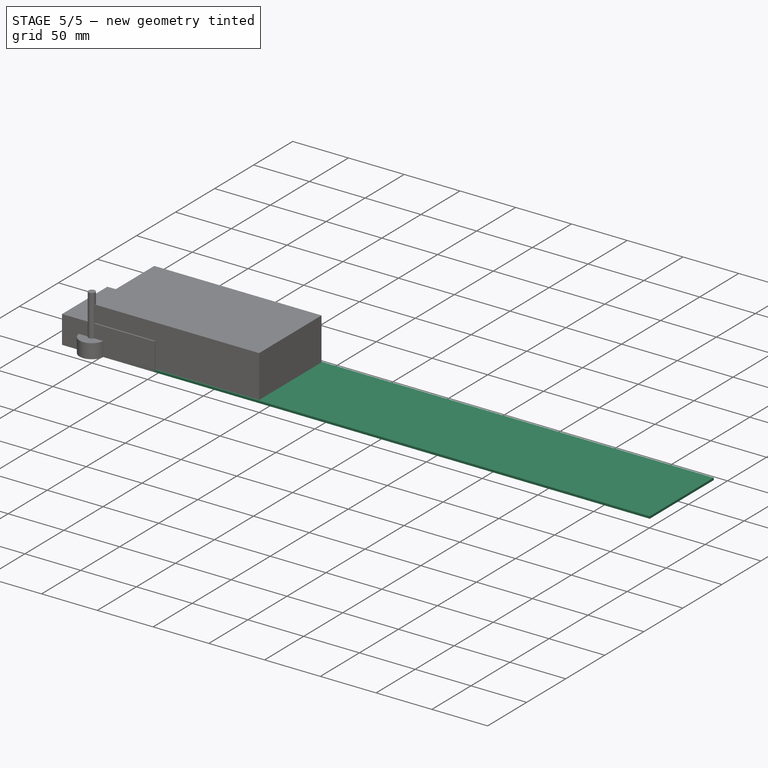
[diagram: stage 5 of 5 — iso view after this stage's code; geometry added in this stage tinted green]
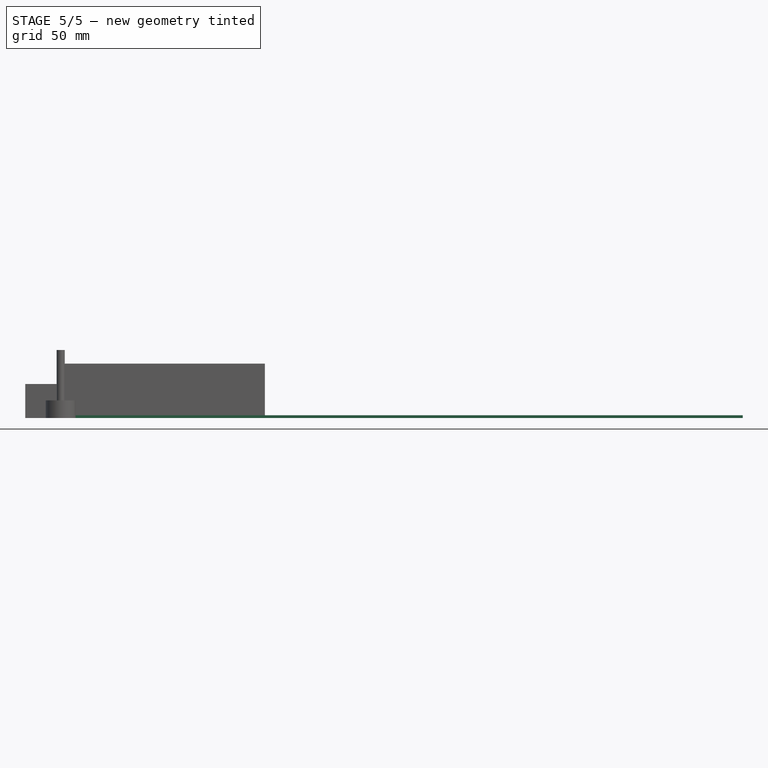
[diagram: stage 5 of 5 — front view after this stage's code; geometry added in this stage tinted green]
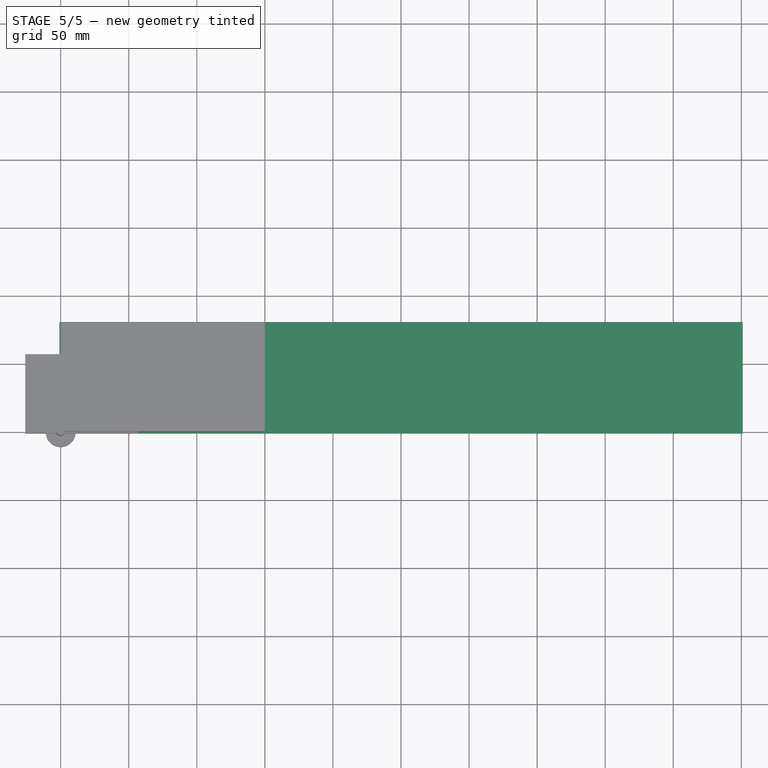
[diagram: stage 5 of 5 — top view after this stage's code; geometry added in this stage tinted green]
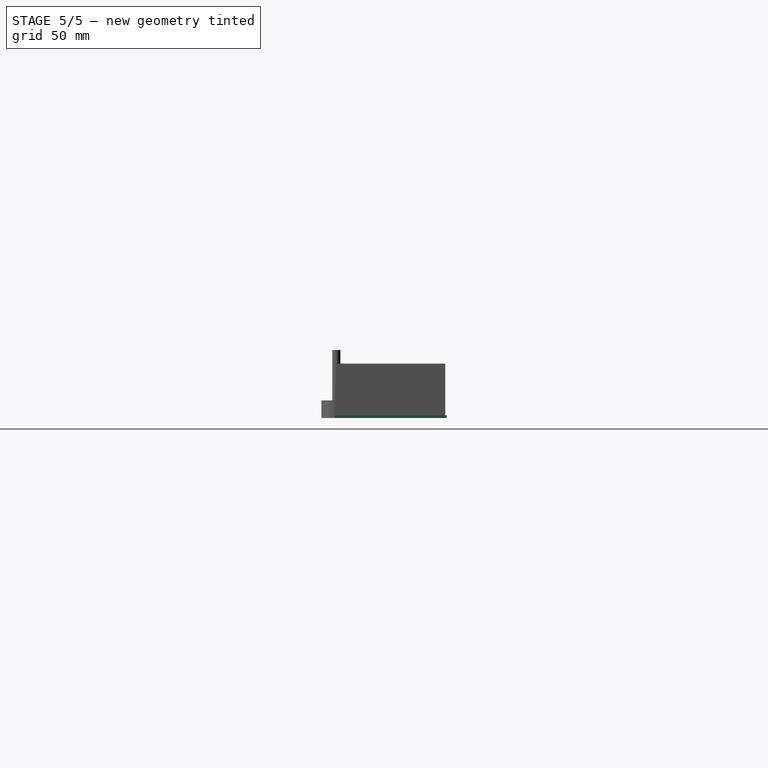
[diagram: stage 5 of 5 — right view after this stage's code; geometry added in this stage tinted green]
FEATURE [PartDesign::AdditiveBox] Box
  AttacherType = Attacher::AttachEngine3D
  Height = 1
  Length = 500
  MapMode = 5
  Support = -> [XY_Plane]
  Width = 80
FEATURE [PartDesign::Body] Body
  Group = -> [Box]
  Origin = -> Origin
  Tip = -> Box
FEATURE [App::FeaturePython] SetupSheet  # Path/CAM operation (typed FeaturePython)
  ClearanceHeightExpression = OpStockZMax+SetupSheet.ClearanceHeightOffset
  ClearanceHeightOffset = 5
  CoolantMode = 0
  CoolantModes = None | Flood | Mist
  FinalDepthExpression = OpFinalDepth
  HorizRapid = 1.66667
  ProfileDirection = 1
  ProfileprocessCircles = true
  ProfileprocessHoles = true
  ProfileprocessPerimeter = true
  SafeHeightExpression = OpStockZMax+SetupSheet.SafeHeightOffset
  SafeHeightOffset = 3
  StartDepthExpression = OpStartDepth
  StepDownExpression = OpToolDiameter
  VertRapid = 1.67
FEATURE [Part::FeaturePython] Clone  label="Model-Body"  # Draft clone (typed FeaturePython)
  AttacherType = Attacher::AttachEngine3D
  Fuse = false
  Objects = -> [Body]
  PathResource = Model
  Scale = (1,1,1)
FEATURE [App::DocumentObjectGroup] Model
  Group = -> [Clone]
FEATURE [Part::FeaturePython] Stock  # WARN: FeaturePython — macro-defined, semantics opaque (R4)
  Base = -> Model
  ExtXneg = 1
  ExtXpos = 1
  ExtYneg = 1
  ExtYpos = 1
  ExtZneg = 0
  ExtZpos = 1
  StockType = FromBase
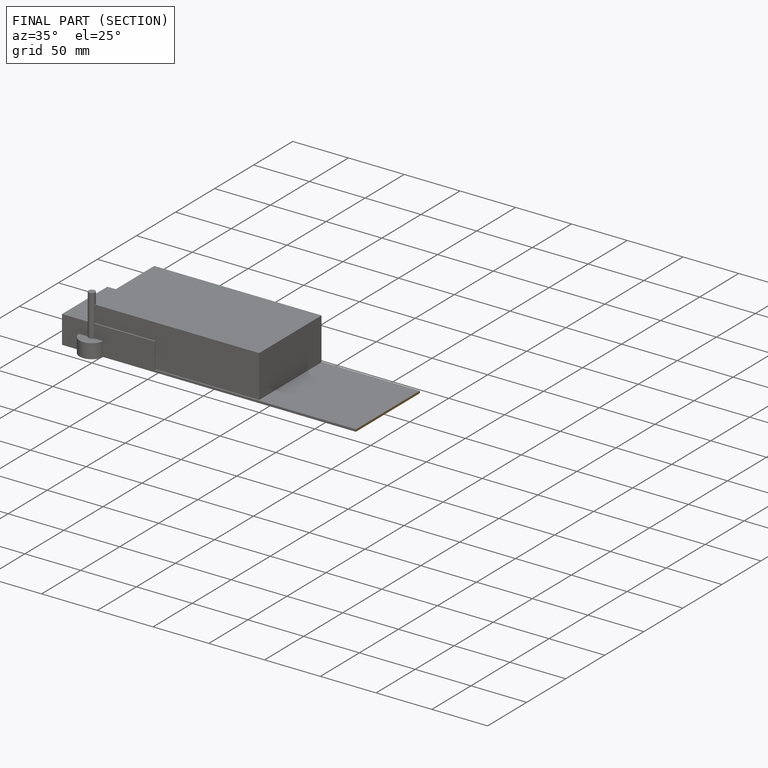
[diagram: finished part — half-section view (interior)]
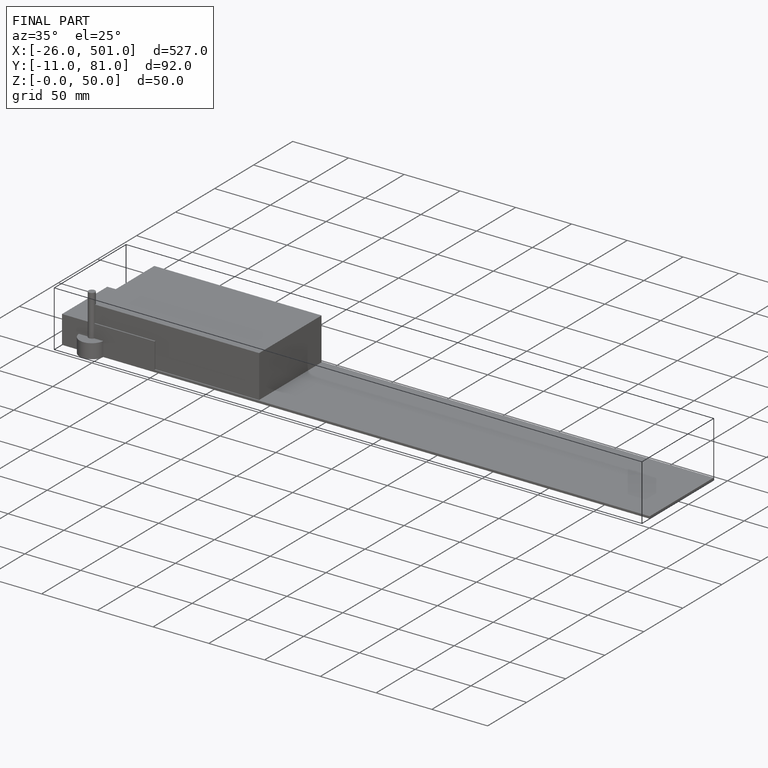
[diagram: finished part — iso view with bounding-box wireframe]
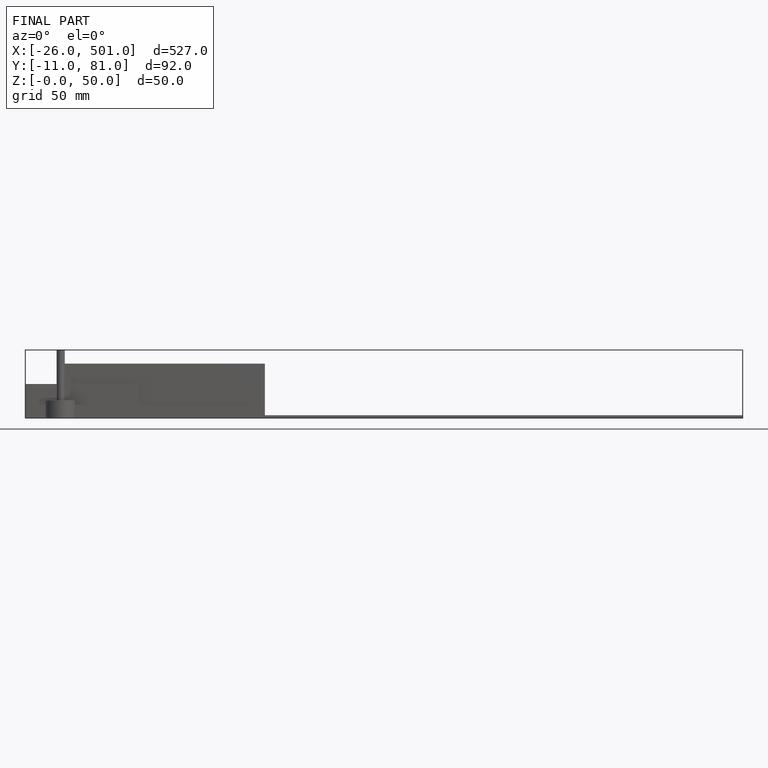
[diagram: finished part — front view with bounding-box wireframe]
